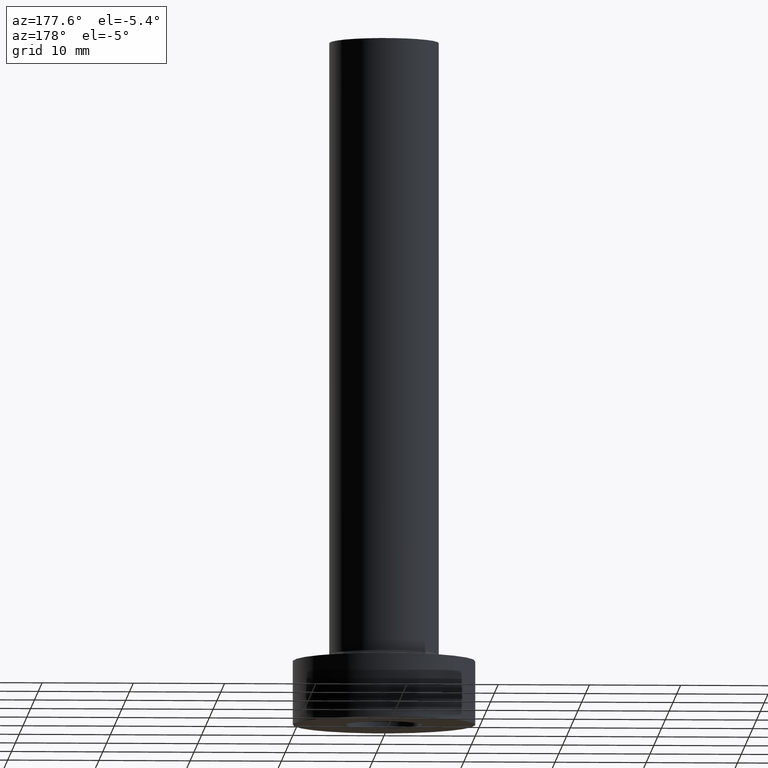
[diagram: clean part render]
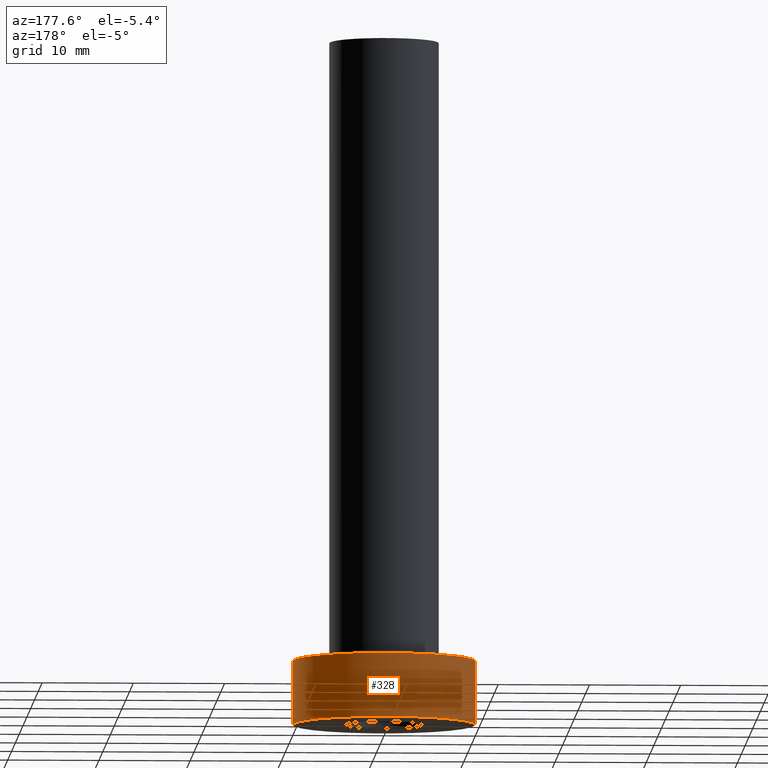
[diagram: same view with one face highlighted and labeled with its STEP entity id]
A machine part, auxiliary view. The second image highlights one B-rep face of the part: STEP entity #328.
In plain terms, the highlighted cylindrical surface (partial cylindrical patch) has radius 10 mm, axis along (-0, -0, -1).
Its self-contained STEP definition (entity closure, byte-faithful):
#9 = VERTEX_POINT ( 'NONE', #399 ) ;
#10 = VERTEX_POINT ( 'NONE', #187 ) ;
#18 = LINE ( 'NONE', #234, #20 ) ;
#19 = VERTEX_POINT ( 'NONE', #330 ) ;
#20 = VECTOR ( 'NONE', #371, 1000.000000000000000 ) ;
#32 = CARTESIAN_POINT ( 'NONE',  ( 0.000000000000000000, 0.000000000000000000, 7.000000000000000000 ) ) ;
#33 = CIRCLE ( 'NONE', #325, 10.00000000000000000 ) ;
#52 = ORIENTED_EDGE ( 'NONE', *, *, #235, .T. ) ;
#59 = CARTESIAN_POINT ( 'NONE',  ( -10.00000000000000000, 0.000000000000000000, 7.000000000000000000 ) ) ;
#70 = FACE_OUTER_BOUND ( 'NONE', #289, .T. ) ;
#72 = AXIS2_PLACEMENT_3D ( 'NONE', #454, #141, #167 ) ;
#111 = EDGE_CURVE ( 'NONE', #19, #9, #232, .T. ) ;
#132 = DIRECTION ( 'NONE',  ( 0.000000000000000000, 0.000000000000000000, 1.000000000000000000 ) ) ;
#141 = DIRECTION ( 'NONE',  ( 0.000000000000000000, 0.000000000000000000, 1.000000000000000000 ) ) ;
#151 = ORIENTED_EDGE ( 'NONE', *, *, #175, .F. ) ;
#166 = CARTESIAN_POINT ( 'NONE',  ( 0.000000000000000000, 0.000000000000000000, 7.000000000000000000 ) ) ;
#167 = DIRECTION ( 'NONE',  ( 1.000000000000000000, 0.000000000000000000, 0.000000000000000000 ) ) ;
#175 = EDGE_CURVE ( 'NONE', #364, #19, #33, .T. ) ;
#187 = CARTESIAN_POINT ( 'NONE',  ( 10.00000000000000000, 1.224646799147353256E-15, 0.000000000000000000 ) ) ;
#200 = CIRCLE ( 'NONE', #72, 10.00000000000000000 ) ;
#206 = CYLINDRICAL_SURFACE ( 'NONE', #231, 10.00000000000000000 ) ;
#216 = DIRECTION ( 'NONE',  ( -0.000000000000000000, -0.000000000000000000, -1.000000000000000000 ) ) ;
#231 = AXIS2_PLACEMENT_3D ( 'NONE', #32, #216, #382 ) ;
#232 = LINE ( 'NONE', #59, #419 ) ;
#234 = CARTESIAN_POINT ( 'NONE',  ( 10.00000000000000000, 1.224646799147353256E-15, 7.000000000000000000 ) ) ;
#235 = EDGE_CURVE ( 'NONE', #364, #10, #18, .T. ) ;
#268 = EDGE_CURVE ( 'NONE', #10, #9, #200, .T. ) ;
#277 = ORIENTED_EDGE ( 'NONE', *, *, #268, .T. ) ;
#289 = EDGE_LOOP ( 'NONE', ( #151, #52, #277, #339 ) ) ;
#301 = DIRECTION ( 'NONE',  ( 1.000000000000000000, 0.000000000000000000, 0.000000000000000000 ) ) ;
#325 = AXIS2_PLACEMENT_3D ( 'NONE', #166, #132, #301 ) ;
#328 = ADVANCED_FACE ( 'NONE', ( #70 ), #206, .T. ) ;
#330 = CARTESIAN_POINT ( 'NONE',  ( -10.00000000000000000, 0.000000000000000000, 7.000000000000000000 ) ) ;
#339 = ORIENTED_EDGE ( 'NONE', *, *, #111, .F. ) ;
#364 = VERTEX_POINT ( 'NONE', #453 ) ;
#371 = DIRECTION ( 'NONE',  ( -0.000000000000000000, -0.000000000000000000, -1.000000000000000000 ) ) ;
#382 = DIRECTION ( 'NONE',  ( -1.000000000000000000, 0.000000000000000000, 0.000000000000000000 ) ) ;
#399 = CARTESIAN_POINT ( 'NONE',  ( -10.00000000000000000, 0.000000000000000000, 0.000000000000000000 ) ) ;
#419 = VECTOR ( 'NONE', #442, 1000.000000000000000 ) ;
#442 = DIRECTION ( 'NONE',  ( -0.000000000000000000, -0.000000000000000000, -1.000000000000000000 ) ) ;
#453 = CARTESIAN_POINT ( 'NONE',  ( 10.00000000000000000, 1.224646799147353256E-15, 7.000000000000000000 ) ) ;
#454 = CARTESIAN_POINT ( 'NONE',  ( 0.000000000000000000, 0.000000000000000000, 0.000000000000000000 ) ) ;